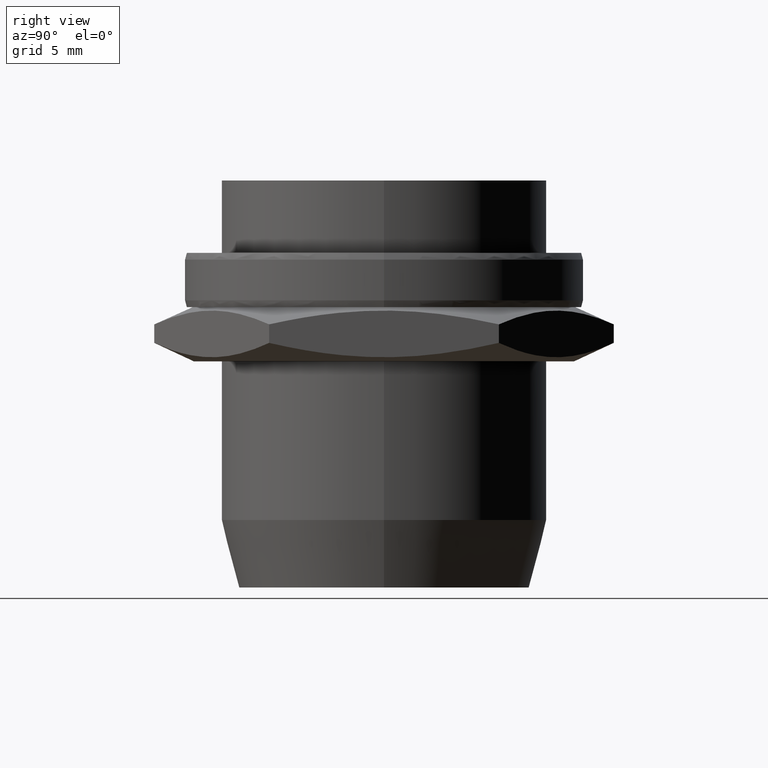
[diagram: clean part render]
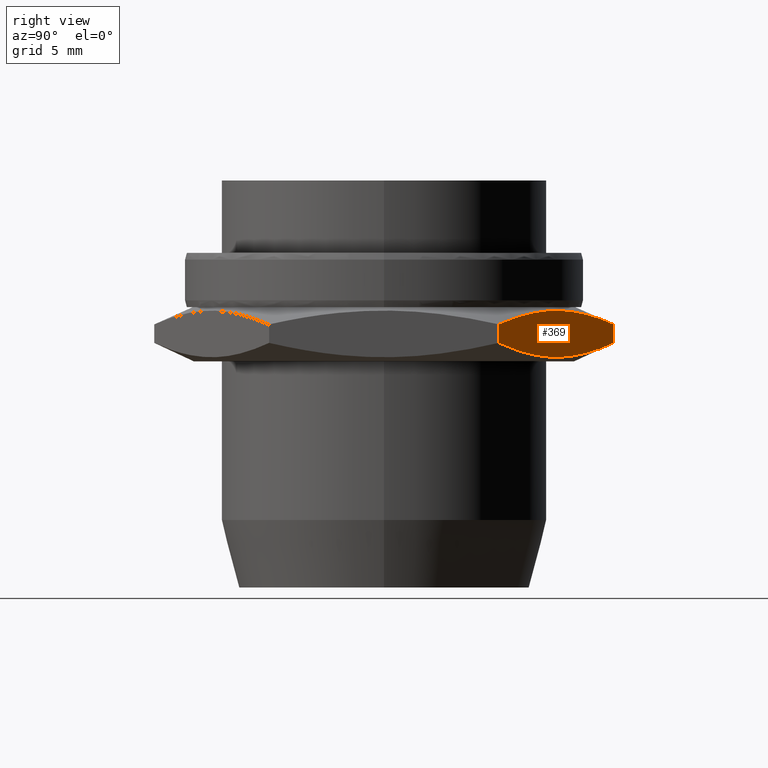
[diagram: same view with one face highlighted and labeled with its STEP entity id]
A machine part, right view. The second image highlights one B-rep face of the part: STEP entity #369.
In plain terms, the highlighted planar face has unit normal (-0.5, -0.866, 0).
Its self-contained STEP definition (entity closure, byte-faithful):
#293=CARTESIAN_POINT('',(11.0,6.350852961086730,14.546885796379765));
#294=VERTEX_POINT('',#293);
#307=CARTESIAN_POINT('',(11.0,6.350852961086730,13.523444124262003));
#308=VERTEX_POINT('',#307);
#320=CARTESIAN_POINT('',(11.0,6.350852961086730,14.546885796379765));
#321=DIRECTION('',(0.0,0.0,-1.0));
#322=VECTOR('',#321,1.023441672117762);
#323=LINE('',#320,#322);
#324=EDGE_CURVE('',#294,#308,#323,.T.);
#329=CARTESIAN_POINT('',(11.0,6.350852961086730,15.499999999999993));
#330=DIRECTION('',(-0.499999999999969,-0.866025403784456,0.0));
#331=DIRECTION('',(-0.866025403784456,0.499999999999969,0.0));
#332=AXIS2_PLACEMENT_3D('',#329,#330,#331);
#333=PLANE('',#332);
#334=CARTESIAN_POINT('',(0.0,12.701705922172096,14.546885796379815));
#335=VERTEX_POINT('',#334);
#336=CARTESIAN_POINT('',(0.0,12.701705922172096,14.546885796379815));
#337=CARTESIAN_POINT('',(1.221853591628630,11.996268422135017,14.863044658640103));
#338=CARTESIAN_POINT('',(2.813155778098491,11.077529676414997,15.172062306934393));
#339=CARTESIAN_POINT('',(4.879501623053770,9.884524346591320,15.312646778401643));
#340=CARTESIAN_POINT('',(6.178917229700851,9.134306396304169,15.315152666362039));
#341=CARTESIAN_POINT('',(8.267971197390182,7.928190525706782,15.158738086753861));
#342=CARTESIAN_POINT('',(9.879733004080336,6.997639412745116,14.836758774029750));
#343=CARTESIAN_POINT('',(11.000000000000007,6.350852961086730,14.546885796379765));
#344=B_SPLINE_CURVE_WITH_KNOTS('',3,(#336,#337,#338,#339,#340,#341,#342,#343),.UNSPECIFIED.,.F.,.U.,(4,1,1,1,1,4),(0.0,4.341052780925620,5.571715310727987,7.168127117035002,8.839998499548861,12.819524565981341),.UNSPECIFIED.);
#345=EDGE_CURVE('',#335,#294,#344,.T.);
#346=ORIENTED_EDGE('',*,*,#345,.T.);
#347=ORIENTED_EDGE('',*,*,#324,.T.);
#348=CARTESIAN_POINT('',(0.0,12.701705922172096,13.523444124261124));
#349=VERTEX_POINT('',#348);
#350=CARTESIAN_POINT('',(0.0,12.701705922172096,13.523444124261113));
#351=CARTESIAN_POINT('',(1.236612580666744,11.987747315840920,13.190519758523436));
#352=CARTESIAN_POINT('',(2.849864392015668,11.056335947067623,12.865792885204634));
#353=CARTESIAN_POINT('',(4.897027485371027,9.874405785886438,12.727380629280630));
#354=CARTESIAN_POINT('',(6.155612201224685,9.147761558226307,12.724981891445827));
#355=CARTESIAN_POINT('',(8.224410722601107,7.953340179546444,12.878360370737376));
#356=CARTESIAN_POINT('',(9.856957043060142,7.010789119971150,13.215710839480744));
#357=CARTESIAN_POINT('',(11.000000000000121,6.350852961086616,13.523444124261998));
#358=B_SPLINE_CURVE_WITH_KNOTS('',3,(#350,#351,#352,#353,#354,#355,#356,#357),.UNSPECIFIED.,.F.,.U.,(4,1,1,1,1,4),(0.0,4.402549355901064,5.652251634858914,7.101132313909402,8.760379059122851,12.829171628303444),.UNSPECIFIED.);
#359=EDGE_CURVE('',#349,#308,#358,.T.);
#360=ORIENTED_EDGE('',*,*,#359,.F.);
#361=CARTESIAN_POINT('',(0.0,12.701705922172096,14.546885796379815));
#362=DIRECTION('',(0.0,0.0,-1.0));
#363=VECTOR('',#362,1.023441672118691);
#364=LINE('',#361,#363);
#365=EDGE_CURVE('',#335,#349,#364,.T.);
#366=ORIENTED_EDGE('',*,*,#365,.F.);
#367=EDGE_LOOP('',(#346,#347,#360,#366));
#368=FACE_OUTER_BOUND('',#367,.T.);
#369=ADVANCED_FACE('',(#368),#333,.F.);